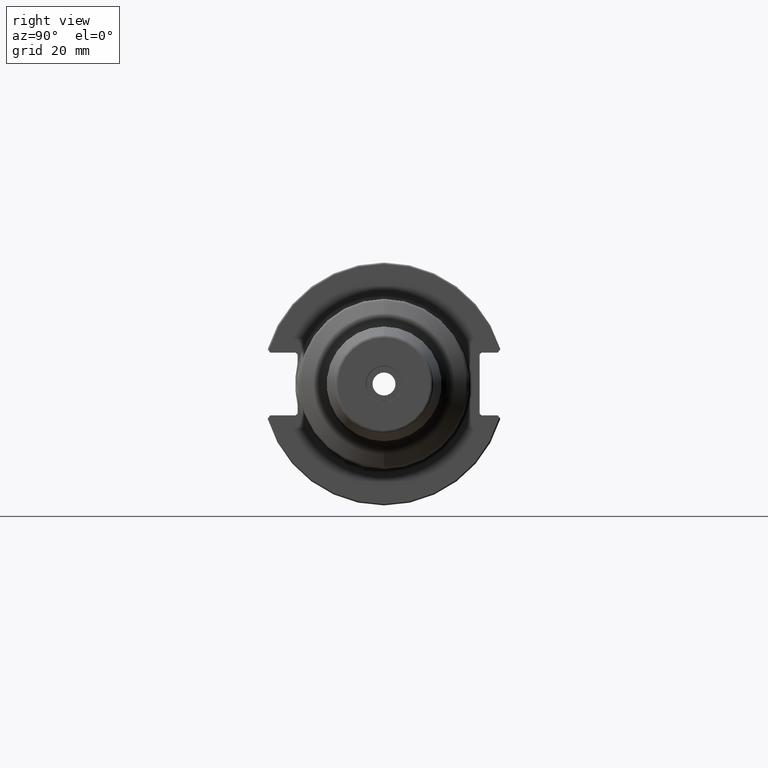
[diagram: clean part render]
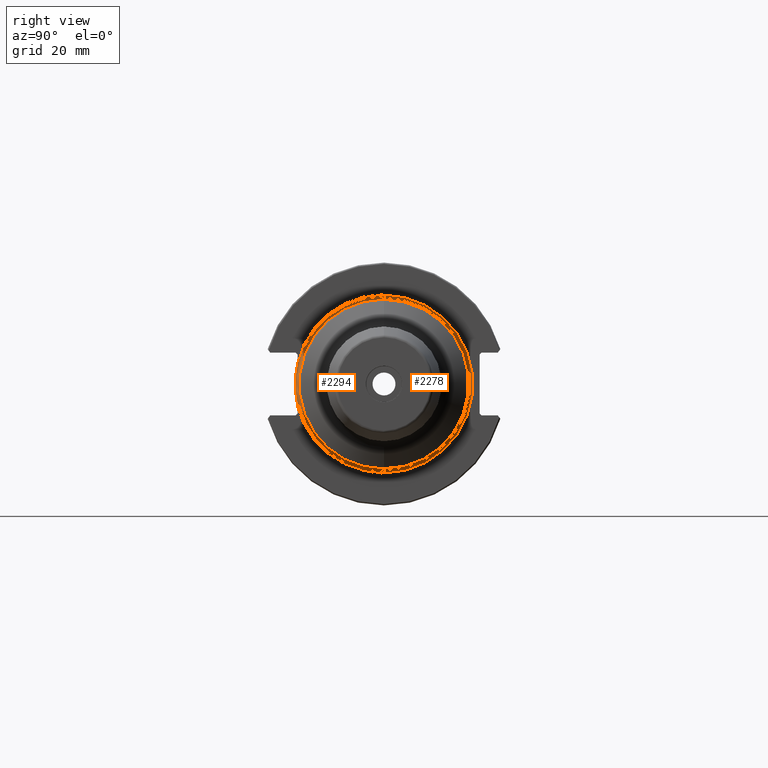
[diagram: same view with one multi-face feature highlighted, each face labeled with its STEP entity id]
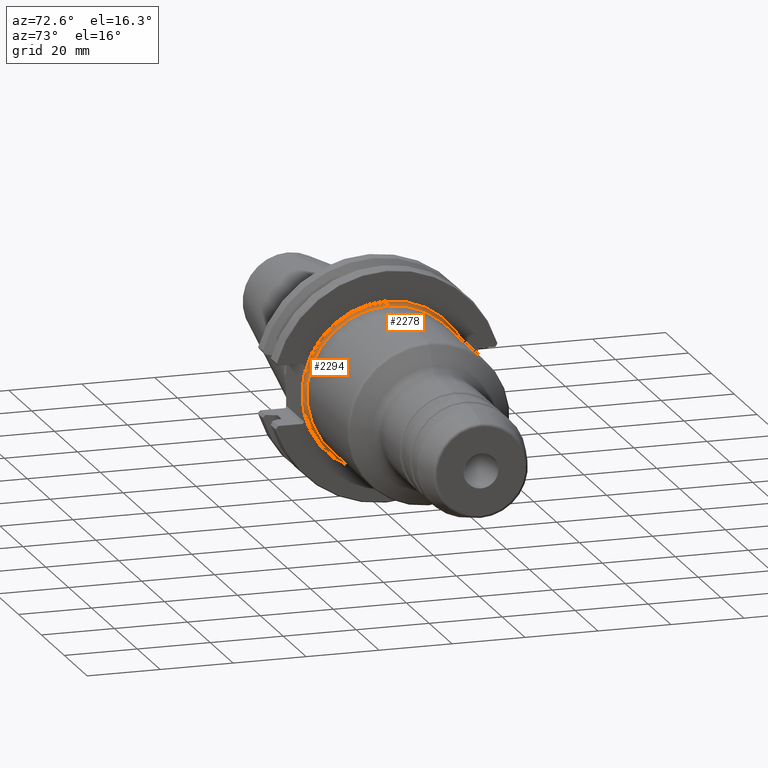
[diagram: same view with one multi-face feature highlighted, each face labeled with its STEP entity id]
A machine part, right view. The highlighted faces form ONE feature: a constant-radius fillet chain: 2 tangent blend faces with common blend radius 1 mm. The faces share edges in the B-rep.
A second angle (auxiliary view) of the same feature is appended — it is thin or edge-on in the first view.
Their STEP definitions:
[1] entity #2294 (Torus):
#207=CARTESIAN_POINT('',(1.9075E1,0.E0,0.E0));
#208=DIRECTION('',(1.E0,0.E0,0.E0));
#209=DIRECTION('',(0.E0,0.E0,1.E0));
#210=AXIS2_PLACEMENT_3D('',#207,#208,#209);
#212=CARTESIAN_POINT('',(1.9075E1,0.E0,0.E0));
#213=DIRECTION('',(1.E0,0.E0,0.E0));
#214=DIRECTION('',(0.E0,-9.730893433800E-1,-2.304281445491E-1));
#215=AXIS2_PLACEMENT_3D('',#212,#213,#214);
#222=CARTESIAN_POINT('',(2.0075E1,0.E0,2.3225E1));
#223=DIRECTION('',(0.E0,1.E0,0.E0));
#224=DIRECTION('',(0.E0,0.E0,-1.E0));
#225=AXIS2_PLACEMENT_3D('',#222,#223,#224);
#227=CARTESIAN_POINT('',(2.0075E1,0.E0,0.E0));
#228=DIRECTION('',(-1.E0,0.E0,0.E0));
#229=DIRECTION('',(0.E0,0.E0,-1.E0));
#230=AXIS2_PLACEMENT_3D('',#227,#228,#229);
#232=CARTESIAN_POINT('',(2.0075E1,0.E0,-2.3225E1));
#233=DIRECTION('',(0.E0,-1.E0,0.E0));
#234=DIRECTION('',(0.E0,0.E0,1.E0));
#235=AXIS2_PLACEMENT_3D('',#232,#233,#234);
#941=CARTESIAN_POINT('',(1.9075E1,0.E0,0.E0));
#942=DIRECTION('',(-1.E0,0.E0,0.E0));
#943=DIRECTION('',(0.E0,-9.730893433800E-1,-2.304281445491E-1));
#944=AXIS2_PLACEMENT_3D('',#941,#942,#943);
#1846=CARTESIAN_POINT('',(2.0075E1,0.E0,-2.2225E1));
#1847=VERTEX_POINT('',#1846);
#1912=CARTESIAN_POINT('',(2.0075E1,0.E0,2.2225E1));
#1913=VERTEX_POINT('',#1912);
#1914=CARTESIAN_POINT('',(1.9075E1,-2.260000000011E1,5.351693656689E0));
#1915=CARTESIAN_POINT('',(1.9075E1,-2.260000000119E1,-5.351693652129E0));
#1916=VERTEX_POINT('',#1914);
#1917=VERTEX_POINT('',#1915);
#1922=CARTESIAN_POINT('',(1.9075E1,0.E0,-2.3225E1));
#1923=CARTESIAN_POINT('',(1.9075E1,0.E0,2.3225E1));
#1924=VERTEX_POINT('',#1922);
#1925=VERTEX_POINT('',#1923);
#2279=CARTESIAN_POINT('',(2.0075E1,0.E0,0.E0));
#2280=DIRECTION('',(1.E0,0.E0,0.E0));
#2281=DIRECTION('',(0.E0,0.E0,1.E0));
#2282=AXIS2_PLACEMENT_3D('',#2279,#2280,#2281);
#2283=TOROIDAL_SURFACE('',#2282,2.3225E1,1.E0);
#2284=ORIENTED_EDGE('',*,*,#2224,.F.);
#2285=ORIENTED_EDGE('',*,*,#2274,.F.);
#2287=ORIENTED_EDGE('',*,*,#2286,.F.);
#2288=ORIENTED_EDGE('',*,*,#2270,.T.);
#2289=ORIENTED_EDGE('',*,*,#2259,.F.);
#2291=ORIENTED_EDGE('',*,*,#2290,.T.);
#2292=EDGE_LOOP('',(#2284,#2285,#2287,#2288,#2289,#2291));
#2293=FACE_OUTER_BOUND('',#2292,.F.);
#2294=ADVANCED_FACE('',(#2293),#2283,.F.);
#211=CIRCLE('',#210,2.322500010117E1);
#216=CIRCLE('',#215,2.322500010190E1);
#226=CIRCLE('',#225,1.E0);
#231=CIRCLE('',#230,2.2225E1);
#236=CIRCLE('',#235,1.E0);
#945=CIRCLE('',#944,2.3225E1);
#2224=EDGE_CURVE('',#1925,#1916,#211,.T.);
#2259=EDGE_CURVE('',#1917,#1924,#216,.T.);
#2270=EDGE_CURVE('',#1847,#1924,#236,.T.);
#2274=EDGE_CURVE('',#1913,#1925,#226,.T.);
#2286=EDGE_CURVE('',#1847,#1913,#231,.T.);
#2290=EDGE_CURVE('',#1917,#1916,#945,.T.);
[2] entity #2278 (Torus):
#202=CARTESIAN_POINT('',(1.9075E1,0.E0,0.E0));
#203=DIRECTION('',(1.E0,0.E0,0.E0));
#204=DIRECTION('',(0.E0,0.E0,-1.E0));
#205=AXIS2_PLACEMENT_3D('',#202,#203,#204);
#217=CARTESIAN_POINT('',(2.0075E1,0.E0,0.E0));
#218=DIRECTION('',(1.E0,0.E0,0.E0));
#219=DIRECTION('',(0.E0,0.E0,-1.E0));
#220=AXIS2_PLACEMENT_3D('',#217,#218,#219);
#222=CARTESIAN_POINT('',(2.0075E1,0.E0,2.3225E1));
#223=DIRECTION('',(0.E0,1.E0,0.E0));
#224=DIRECTION('',(0.E0,0.E0,-1.E0));
#225=AXIS2_PLACEMENT_3D('',#222,#223,#224);
#232=CARTESIAN_POINT('',(2.0075E1,0.E0,-2.3225E1));
#233=DIRECTION('',(0.E0,-1.E0,0.E0));
#234=DIRECTION('',(0.E0,0.E0,1.E0));
#235=AXIS2_PLACEMENT_3D('',#232,#233,#234);
#1846=CARTESIAN_POINT('',(2.0075E1,0.E0,-2.2225E1));
#1847=VERTEX_POINT('',#1846);
#1912=CARTESIAN_POINT('',(2.0075E1,0.E0,2.2225E1));
#1913=VERTEX_POINT('',#1912);
#1922=CARTESIAN_POINT('',(1.9075E1,0.E0,-2.3225E1));
#1923=CARTESIAN_POINT('',(1.9075E1,0.E0,2.3225E1));
#1924=VERTEX_POINT('',#1922);
#1925=VERTEX_POINT('',#1923);
#2264=CARTESIAN_POINT('',(2.0075E1,0.E0,0.E0));
#2265=DIRECTION('',(1.E0,0.E0,0.E0));
#2266=DIRECTION('',(0.E0,0.E0,1.E0));
#2267=AXIS2_PLACEMENT_3D('',#2264,#2265,#2266);
#2268=TOROIDAL_SURFACE('',#2267,2.3225E1,1.E0);
#2269=ORIENTED_EDGE('',*,*,#2222,.F.);
#2271=ORIENTED_EDGE('',*,*,#2270,.F.);
#2273=ORIENTED_EDGE('',*,*,#2272,.T.);
#2275=ORIENTED_EDGE('',*,*,#2274,.T.);
#2276=EDGE_LOOP('',(#2269,#2271,#2273,#2275));
#2277=FACE_OUTER_BOUND('',#2276,.F.);
#2278=ADVANCED_FACE('',(#2277),#2268,.F.);
#206=CIRCLE('',#205,2.3225E1);
#221=CIRCLE('',#220,2.2225E1);
#226=CIRCLE('',#225,1.E0);
#236=CIRCLE('',#235,1.E0);
#2222=EDGE_CURVE('',#1924,#1925,#206,.T.);
#2270=EDGE_CURVE('',#1847,#1924,#236,.T.);
#2272=EDGE_CURVE('',#1847,#1913,#221,.T.);
#2274=EDGE_CURVE('',#1913,#1925,#226,.T.);